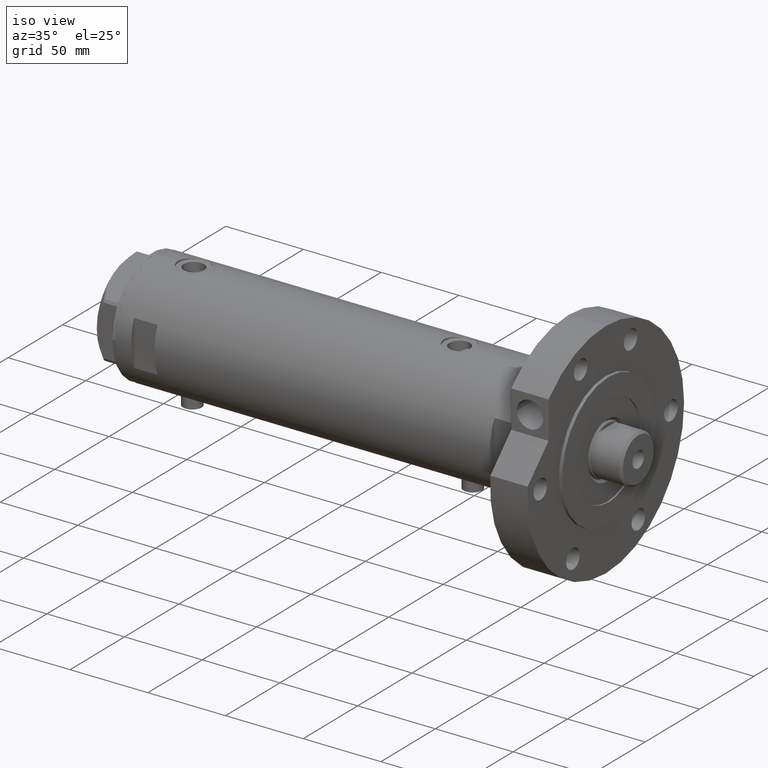
[diagram: clean part render]
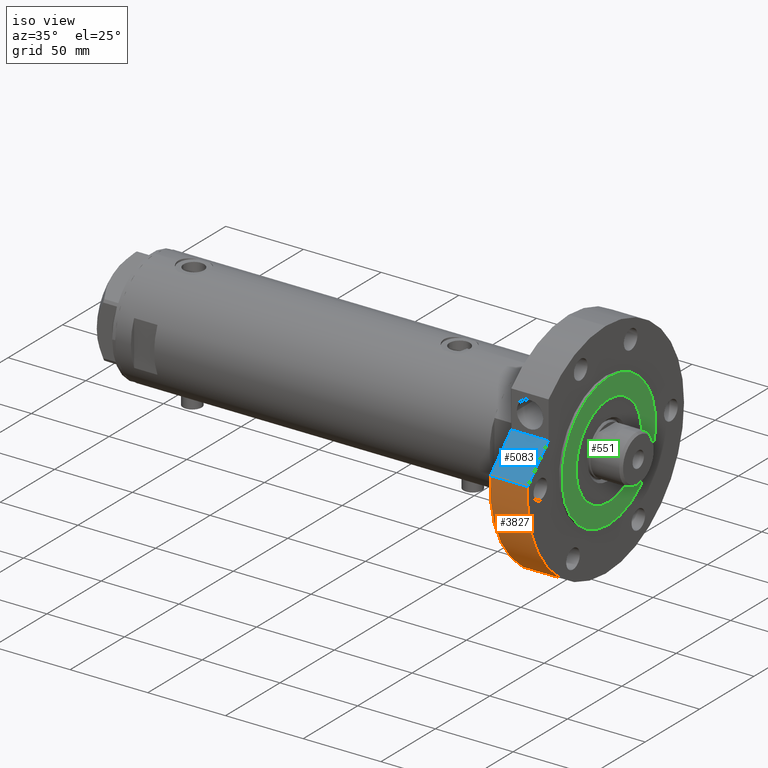
[diagram: same view with three faces highlighted in distinct colors, each labeled with its STEP entity id]
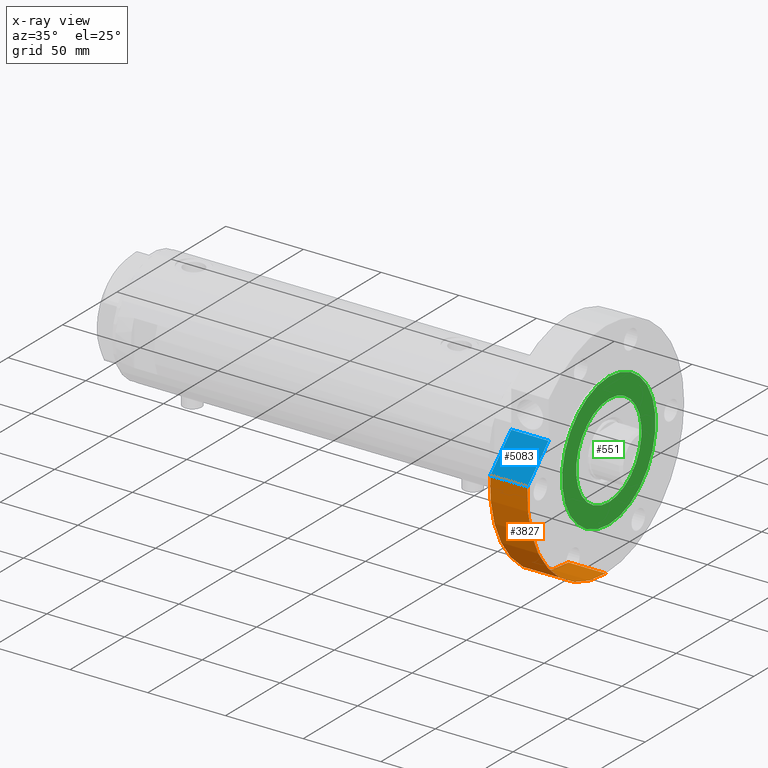
[diagram: x-ray of the same camera — body ghosted, the three highlighted faces saturated]
A machine part, iso view with three faces highlighted in distinct colors.
The next image is the same camera in x-ray (body ghosted, the three faces saturated) — at least one of them is partly hidden behind the body in this view.
Their STEP definitions:

[orange] entity #3827 — the highlighted cylindrical surface (partial cylindrical patch) has radius 72 mm, axis along (-1, -0, 0).
#216 = CARTESIAN_POINT ( 'NONE',  ( -72.00000000000000000, 0.000000000000000000, 24.00000000000000000 ) ) ;
#246 = LINE ( 'NONE', #5469, #4178 ) ;
#306 = DIRECTION ( 'NONE',  ( 0.000000000000000000, 0.000000000000000000, 1.000000000000000000 ) ) ;
#890 = CARTESIAN_POINT ( 'NONE',  ( 5.949394898342027282, 71.75377830012563152, 24.00000000000000000 ) ) ;
#970 = EDGE_CURVE ( 'NONE', #2733, #4503, #4238, .T. ) ;
#1069 = AXIS2_PLACEMENT_3D ( 'NONE', #5650, #2377, #1381 ) ;
#1186 = VECTOR ( 'NONE', #1243, 1000.000000000000000 ) ;
#1243 = DIRECTION ( 'NONE',  ( -0.000000000000000000, -0.000000000000000000, 1.000000000000000000 ) ) ;
#1265 = ORIENTED_EDGE ( 'NONE', *, *, #3149, .F. ) ;
#1314 = VERTEX_POINT ( 'NONE', #890 ) ;
#1381 = DIRECTION ( 'NONE',  ( 1.000000000000000000, 0.000000000000000000, 0.000000000000000000 ) ) ;
#1490 = AXIS2_PLACEMENT_3D ( 'NONE', #4342, #3825, #4855 ) ;
#1594 = CARTESIAN_POINT ( 'NONE',  ( 5.949394898342027282, 71.75377830012563152, 0.000000000000000000 ) ) ;
#1657 = DIRECTION ( 'NONE',  ( -0.000000000000000000, -0.000000000000000000, -1.000000000000000000 ) ) ;
#1911 = CYLINDRICAL_SURFACE ( 'NONE', #1490, 72.00000000000000000 ) ;
#2258 = ORIENTED_EDGE ( 'NONE', *, *, #970, .T. ) ;
#2377 = DIRECTION ( 'NONE',  ( 0.000000000000000000, 0.000000000000000000, 1.000000000000000000 ) ) ;
#2389 = VERTEX_POINT ( 'NONE', #216 ) ;
#2535 = EDGE_CURVE ( 'NONE', #1314, #2389, #5357, .T. ) ;
#2733 = VERTEX_POINT ( 'NONE', #2787 ) ;
#2787 = CARTESIAN_POINT ( 'NONE',  ( 5.949394898342027282, 71.75377830012563152, 0.000000000000000000 ) ) ;
#2829 = FACE_OUTER_BOUND ( 'NONE', #4482, .T. ) ;
#3143 = DIRECTION ( 'NONE',  ( 1.000000000000000000, 0.000000000000000000, 0.000000000000000000 ) ) ;
#3149 = EDGE_CURVE ( 'NONE', #2733, #1314, #3560, .T. ) ;
#3560 = LINE ( 'NONE', #1594, #1186 ) ;
#3570 = CARTESIAN_POINT ( 'NONE',  ( 0.000000000000000000, 0.000000000000000000, 24.00000000000000000 ) ) ;
#3734 = CARTESIAN_POINT ( 'NONE',  ( -72.00000000000000000, 0.000000000000000000, 0.000000000000000000 ) ) ;
#3825 = DIRECTION ( 'NONE',  ( -0.000000000000000000, -0.000000000000000000, -1.000000000000000000 ) ) ;
#3827 = ADVANCED_FACE ( 'NONE', ( #2829 ), #1911, .T. ) ;
#3950 = ORIENTED_EDGE ( 'NONE', *, *, #3966, .F. ) ;
#3963 = AXIS2_PLACEMENT_3D ( 'NONE', #3570, #306, #3143 ) ;
#3966 = EDGE_CURVE ( 'NONE', #2389, #4503, #246, .T. ) ;
#4178 = VECTOR ( 'NONE', #1657, 1000.000000000000000 ) ;
#4238 = CIRCLE ( 'NONE', #1069, 72.00000000000000000 ) ;
#4342 = CARTESIAN_POINT ( 'NONE',  ( 0.000000000000000000, 0.000000000000000000, 24.00000000000000000 ) ) ;
#4482 = EDGE_LOOP ( 'NONE', ( #3950, #4726, #1265, #2258 ) ) ;
#4503 = VERTEX_POINT ( 'NONE', #3734 ) ;
#4726 = ORIENTED_EDGE ( 'NONE', *, *, #2535, .F. ) ;
#4855 = DIRECTION ( 'NONE',  ( -1.000000000000000000, 0.000000000000000000, 0.000000000000000000 ) ) ;
#5357 = CIRCLE ( 'NONE', #3963, 72.00000000000000000 ) ;
#5469 = CARTESIAN_POINT ( 'NONE',  ( -72.00000000000000000, 0.000000000000000000, 24.00000000000000000 ) ) ;
#5650 = CARTESIAN_POINT ( 'NONE',  ( 0.000000000000000000, 0.000000000000000000, 0.000000000000000000 ) ) ;

[blue] entity #5083 — the highlighted planar face has unit normal (-0, 0.7071, -0.7071).
#406 = DIRECTION ( 'NONE',  ( -0.7071067811865436870, -0.7071067811865513475, 0.000000000000000000 ) ) ;
#664 = LINE ( 'NONE', #4987, #795 ) ;
#795 = VECTOR ( 'NONE', #1213, 1000.000000000000114 ) ;
#890 = CARTESIAN_POINT ( 'NONE',  ( 5.949394898342027282, 71.75377830012563152, 24.00000000000000000 ) ) ;
#996 = LINE ( 'NONE', #1085, #5065 ) ;
#1050 = LINE ( 'NONE', #2992, #4955 ) ;
#1085 = CARTESIAN_POINT ( 'NONE',  ( 38.85158659923380498, 38.85158659923422420, 24.00000000000000000 ) ) ;
#1171 = EDGE_CURVE ( 'NONE', #3739, #3934, #1050, .T. ) ;
#1186 = VECTOR ( 'NONE', #1243, 1000.000000000000000 ) ;
#1213 = DIRECTION ( 'NONE',  ( 0.7071067811865513475, -0.7071067811865436870, -0.000000000000000000 ) ) ;
#1243 = DIRECTION ( 'NONE',  ( -0.000000000000000000, -0.000000000000000000, 1.000000000000000000 ) ) ;
#1314 = VERTEX_POINT ( 'NONE', #890 ) ;
#1576 = ORIENTED_EDGE ( 'NONE', *, *, #3149, .T. ) ;
#1594 = CARTESIAN_POINT ( 'NONE',  ( 5.949394898342027282, 71.75377830012563152, 0.000000000000000000 ) ) ;
#1938 = PLANE ( 'NONE',  #5158 ) ;
#2072 = CARTESIAN_POINT ( 'NONE',  ( 25.21805468567554698, 52.48511851279232587, 24.00000000000000000 ) ) ;
#2270 = ORIENTED_EDGE ( 'NONE', *, *, #5119, .T. ) ;
#2650 = ORIENTED_EDGE ( 'NONE', *, *, #3593, .F. ) ;
#2733 = VERTEX_POINT ( 'NONE', #2787 ) ;
#2747 = ORIENTED_EDGE ( 'NONE', *, *, #1171, .F. ) ;
#2787 = CARTESIAN_POINT ( 'NONE',  ( 5.949394898342027282, 71.75377830012563152, 0.000000000000000000 ) ) ;
#2992 = CARTESIAN_POINT ( 'NONE',  ( 25.21805468567554698, 52.48511851279232587, 0.000000000000000000 ) ) ;
#3149 = EDGE_CURVE ( 'NONE', #2733, #1314, #3560, .T. ) ;
#3560 = LINE ( 'NONE', #1594, #1186 ) ;
#3593 = EDGE_CURVE ( 'NONE', #2733, #3739, #664, .T. ) ;
#3739 = VERTEX_POINT ( 'NONE', #5788 ) ;
#3888 = DIRECTION ( 'NONE',  ( 0.7071067811865513475, -0.7071067811865436870, 0.000000000000000000 ) ) ;
#3934 = VERTEX_POINT ( 'NONE', #2072 ) ;
#4202 = DIRECTION ( 'NONE',  ( 0.7071067811865513475, -0.7071067811865436870, 0.000000000000000000 ) ) ;
#4341 = CARTESIAN_POINT ( 'NONE',  ( 25.21805468567554698, 52.48511851279232587, 0.000000000000000000 ) ) ;
#4475 = EDGE_LOOP ( 'NONE', ( #2270, #2747, #2650, #1576 ) ) ;
#4891 = DIRECTION ( 'NONE',  ( -0.000000000000000000, -0.000000000000000000, 1.000000000000000000 ) ) ;
#4955 = VECTOR ( 'NONE', #4891, 1000.000000000000000 ) ;
#4987 = CARTESIAN_POINT ( 'NONE',  ( 25.21805468567554698, 52.48511851279232587, 0.000000000000000000 ) ) ;
#5065 = VECTOR ( 'NONE', #3888, 1000.000000000000000 ) ;
#5083 = ADVANCED_FACE ( 'NONE', ( #5812 ), #1938, .F. ) ;
#5119 = EDGE_CURVE ( 'NONE', #1314, #3934, #996, .T. ) ;
#5158 = AXIS2_PLACEMENT_3D ( 'NONE', #4341, #406, #4202 ) ;
#5788 = CARTESIAN_POINT ( 'NONE',  ( 25.21805468567554698, 52.48511851279233298, 0.000000000000000000 ) ) ;
#5812 = FACE_OUTER_BOUND ( 'NONE', #4475, .T. ) ;

[green] entity #551 — the highlighted planar face has unit normal (1, 0, -0).
#52 = VERTEX_POINT ( 'NONE', #3600 ) ;
#117 = ORIENTED_EDGE ( 'NONE', *, *, #2534, .T. ) ;
#195 = CIRCLE ( 'NONE', #4753, 43.00000000000000000 ) ;
#269 = DIRECTION ( 'NONE',  ( 1.000000000000000000, 0.000000000000000000, 0.000000000000000000 ) ) ;
#551 = ADVANCED_FACE ( 'NONE', ( #1271, #4601 ), #3189, .T. ) ;
#877 = AXIS2_PLACEMENT_3D ( 'NONE', #2021, #1037, #4265 ) ;
#1037 = DIRECTION ( 'NONE',  ( 0.000000000000000000, 0.000000000000000000, 1.000000000000000000 ) ) ;
#1112 = DIRECTION ( 'NONE',  ( 1.000000000000000000, 0.000000000000000000, 0.000000000000000000 ) ) ;
#1271 = FACE_BOUND ( 'NONE', #4811, .T. ) ;
#1371 = ORIENTED_EDGE ( 'NONE', *, *, #1469, .F. ) ;
#1469 = EDGE_CURVE ( 'NONE', #5905, #52, #4453, .T. ) ;
#1530 = VERTEX_POINT ( 'NONE', #2002 ) ;
#1949 = EDGE_CURVE ( 'NONE', #52, #5905, #3663, .T. ) ;
#2002 = CARTESIAN_POINT ( 'NONE',  ( 43.00000000000000000, 5.265981236333618470E-15, 26.00000000000000355 ) ) ;
#2021 = CARTESIAN_POINT ( 'NONE',  ( 0.000000000000000000, 0.000000000000000000, 26.00000000000000355 ) ) ;
#2210 = CARTESIAN_POINT ( 'NONE',  ( -43.00000000000000000, 0.000000000000000000, 26.00000000000000355 ) ) ;
#2332 = DIRECTION ( 'NONE',  ( 0.000000000000000000, 0.000000000000000000, 1.000000000000000000 ) ) ;
#2534 = EDGE_CURVE ( 'NONE', #5831, #1530, #195, .T. ) ;
#2634 = DIRECTION ( 'NONE',  ( 0.000000000000000000, 0.000000000000000000, 1.000000000000000000 ) ) ;
#2971 = AXIS2_PLACEMENT_3D ( 'NONE', #3355, #5370, #1112 ) ;
#3189 = PLANE ( 'NONE',  #3463 ) ;
#3192 = AXIS2_PLACEMENT_3D ( 'NONE', #3782, #2332, #6123 ) ;
#3355 = CARTESIAN_POINT ( 'NONE',  ( 0.000000000000000000, 0.000000000000000000, 26.00000000000000355 ) ) ;
#3463 = AXIS2_PLACEMENT_3D ( 'NONE', #6024, #4630, #5189 ) ;
#3600 = CARTESIAN_POINT ( 'NONE',  ( -30.00000000000000000, 3.673940397442059178E-15, 26.00000000000000355 ) ) ;
#3663 = CIRCLE ( 'NONE', #877, 30.00000000000000000 ) ;
#3685 = CIRCLE ( 'NONE', #3192, 43.00000000000000000 ) ;
#3688 = CARTESIAN_POINT ( 'NONE',  ( 30.00000000000000000, 0.000000000000000000, 26.00000000000000355 ) ) ;
#3782 = CARTESIAN_POINT ( 'NONE',  ( 0.000000000000000000, 0.000000000000000000, 26.00000000000000355 ) ) ;
#4196 = EDGE_CURVE ( 'NONE', #1530, #5831, #3685, .T. ) ;
#4265 = DIRECTION ( 'NONE',  ( 1.000000000000000000, 0.000000000000000000, 0.000000000000000000 ) ) ;
#4453 = CIRCLE ( 'NONE', #2971, 30.00000000000000000 ) ;
#4601 = FACE_OUTER_BOUND ( 'NONE', #5735, .T. ) ;
#4630 = DIRECTION ( 'NONE',  ( 0.000000000000000000, 0.000000000000000000, 1.000000000000000000 ) ) ;
#4753 = AXIS2_PLACEMENT_3D ( 'NONE', #5434, #2634, #269 ) ;
#4811 = EDGE_LOOP ( 'NONE', ( #1371, #5682 ) ) ;
#4981 = ORIENTED_EDGE ( 'NONE', *, *, #4196, .T. ) ;
#5189 = DIRECTION ( 'NONE',  ( 1.000000000000000000, 0.000000000000000000, -0.000000000000000000 ) ) ;
#5370 = DIRECTION ( 'NONE',  ( 0.000000000000000000, 0.000000000000000000, 1.000000000000000000 ) ) ;
#5434 = CARTESIAN_POINT ( 'NONE',  ( 0.000000000000000000, 0.000000000000000000, 26.00000000000000355 ) ) ;
#5682 = ORIENTED_EDGE ( 'NONE', *, *, #1949, .F. ) ;
#5735 = EDGE_LOOP ( 'NONE', ( #117, #4981 ) ) ;
#5831 = VERTEX_POINT ( 'NONE', #2210 ) ;
#5905 = VERTEX_POINT ( 'NONE', #3688 ) ;
#6024 = CARTESIAN_POINT ( 'NONE',  ( 0.000000000000000000, 0.000000000000000000, 26.00000000000000355 ) ) ;
#6123 = DIRECTION ( 'NONE',  ( 1.000000000000000000, 0.000000000000000000, 0.000000000000000000 ) ) ;